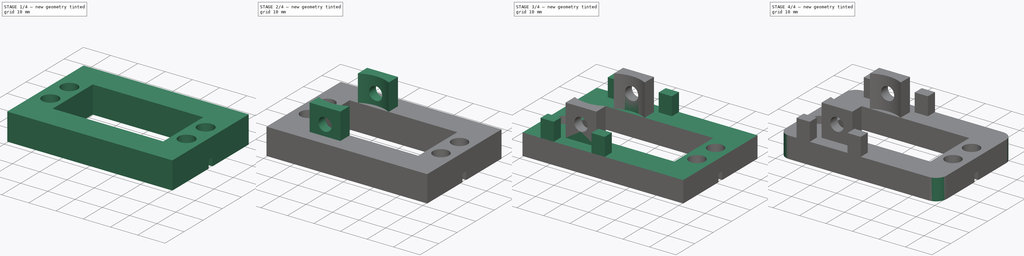
[diagram: build sequence overview — one tinted view per stage of 4, left to right]
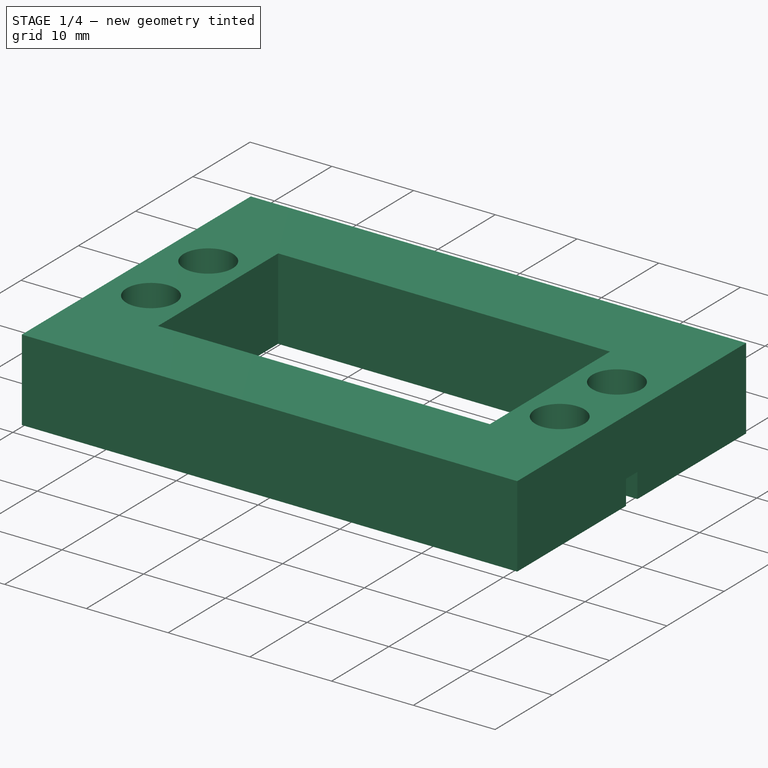
[diagram: stage 1 of 4 — iso view after this stage's code; geometry added in this stage tinted green]
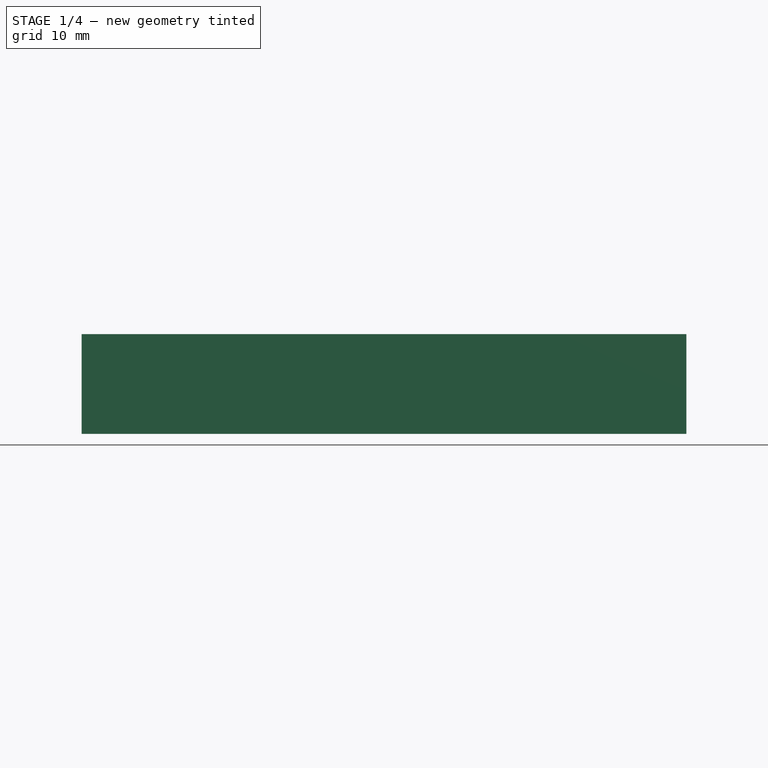
[diagram: stage 1 of 4 — front view after this stage's code; geometry added in this stage tinted green]
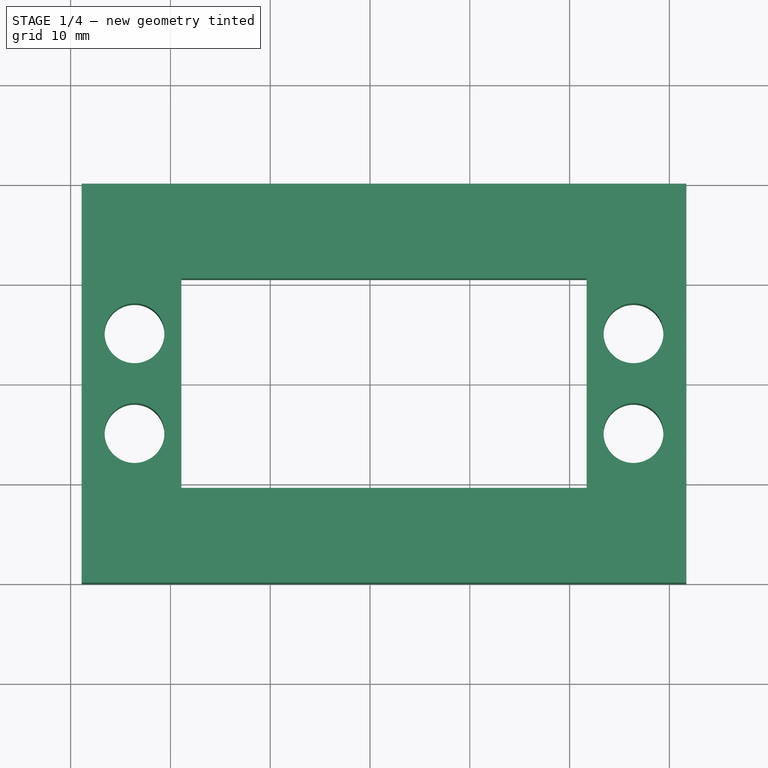
[diagram: stage 1 of 4 — top view after this stage's code; geometry added in this stage tinted green]
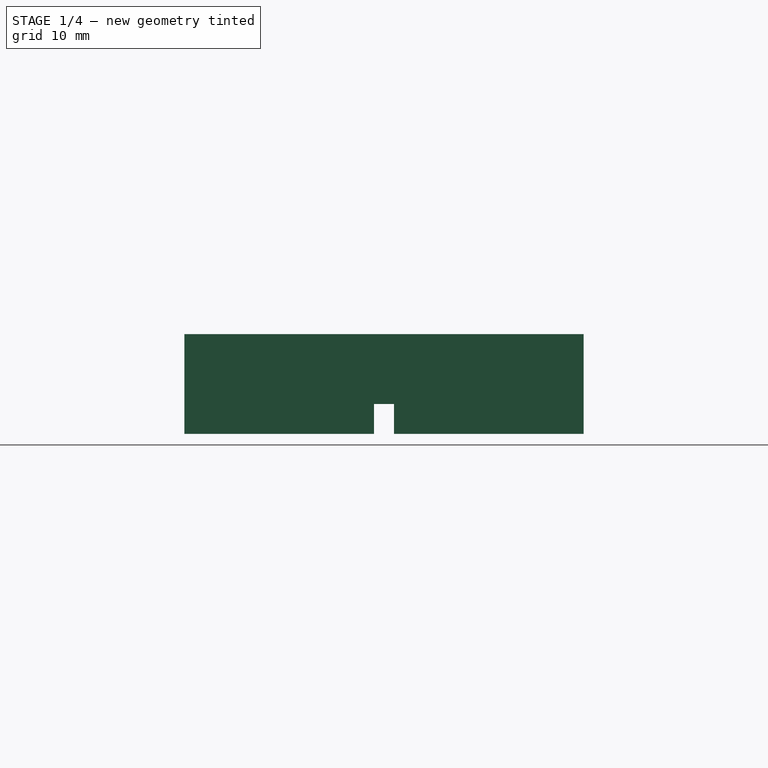
[diagram: stage 1 of 4 — right view after this stage's code; geometry added in this stage tinted green]
FCSTD DOCUMENT  (FreeCAD 0.20R29603 (Git))
Label: Servo_Halter_demo
License: All rights reserved
LicenseURL: http://en.wikipedia.org/wiki/All_rights_reserved
objects: Sketcher::SketchObject×5, PartDesign::Pocket×5, PartDesign::Plane×4, PartDesign::Pad×3, PartDesign::Fillet×1, PartDesign::Body×1
note: 28 computed .brp shape members not serialized (recipe doc carries the construction recipe); baked Part::Feature solids carry a one-line shape summary decoded from their .brp

FEATURE [Sketcher::SketchObject] Sketch
  FullyConstrained = true
  MapMode = 5
  Support = -> [XY_Plane]
  sketch-geometry (16):
    g0: LineSegment StartX=-8.9 StartY=10.5 StartZ=0 EndX=31.7 EndY=10.5 EndZ=0
    g1: LineSegment StartX=31.7 StartY=10.5 StartZ=0 EndX=31.7 EndY=-10.5 EndZ=0
    g2: LineSegment StartX=31.7 StartY=-10.5 StartZ=0 EndX=-8.9 EndY=-10.5 EndZ=0
    g3: LineSegment StartX=-8.9 StartY=-10.5 StartZ=0 EndX=-8.9 EndY=10.5 EndZ=0
    g4: LineSegment StartX=-18.9 StartY=20 StartZ=0 EndX=41.7 EndY=20 EndZ=0
    g5: LineSegment StartX=41.7 StartY=20 StartZ=0 EndX=41.7 EndY=-20 EndZ=0
    g6: LineSegment StartX=41.7 StartY=-20 StartZ=0 EndX=-18.9 EndY=-20 EndZ=0
    g7: LineSegment StartX=-18.9 StartY=-20 StartZ=0 EndX=-18.9 EndY=20 EndZ=0
    g8: Circle CenterX=-13.6 CenterY=5 CenterZ=0 NormalX=0 NormalY=0 NormalZ=1 AngleXU=0 Radius=3
    g9: Circle CenterX=-13.6 CenterY=-5 CenterZ=0 NormalX=0 NormalY=0 NormalZ=1 AngleXU=0 Radius=3
    g10: Circle CenterX=36.4 CenterY=5 CenterZ=0 NormalX=0 NormalY=0 NormalZ=1 AngleXU=0 Radius=3
    g11: Circle CenterX=36.4 CenterY=-5 CenterZ=0 NormalX=0 NormalY=0 NormalZ=1 AngleXU=0 Radius=3
    g12: LineSegment StartX=-13.6 StartY=5 StartZ=0 EndX=-13.6 EndY=-5 EndZ=0
    g13: LineSegment StartX=36.4 StartY=5 StartZ=0 EndX=36.4 EndY=-5 EndZ=0
    g14: LineSegment StartX=11.4 StartY=10.5 StartZ=0 EndX=11.4 EndY=-10.5 EndZ=0
    g15: LineSegment StartX=-16.6 StartY=20 StartZ=0 EndX=-16.6 EndY=-20 EndZ=0
  constraints (43):
    c: Coincident(g0,g1)
    c: Coincident(g1,g2)
    c: Coincident(g2,g3)
    c: Coincident(g3,g0)
    c: Horizontal(g0)
    c: Horizontal(g2)
    c: Vertical(g1)
    c: Coincident(g4,g5)
    c: Coincident(g5,g6)
    c: Coincident(g6,g7)
    c: Coincident(g7,g4)
    c: Horizontal(g4)
    c: Horizontal(g6)
    c: Vertical(g5)
    c: DistanceX(g0,g0) = 40.6
    c: DistanceX(g6,g2) = 10
    c: DistanceX(g1,g5) = 10
    c: DistanceY(g5,g5) = 40
    c: DistanceY(g1,g1) = 21
    c: Symmetric(g0,g2,g-1)
    c: Symmetric(g4,g6,g-1)
    c: Coincident(g12,g8)
    c: Coincident(g12,g9)
    c: Coincident(g13,g10)
    c: Coincident(g13,g11)
    c: Vertical(g13)
    c: DistanceX(g9,g11) = 50
    c: Equal(g9,g8)
    c: Equal(g8,g10)
    c: Equal(g10,g11)
    c: Diameter(g8) = 6
    c: PointOnObject(g14,g0)
    c: PointOnObject(g14,g2)
    c: Symmetric(g0,g0,g14)
    c: Symmetric(g8,g10,g14)
    c: DistanceY(g13,g13) = 10
    c: Equal(g12,g13)
    c: Symmetric(g8,g9,g-1)
    c: PointOnObject(g15,g4)
    c: PointOnObject(g15,g6)
    c: Vertical(g15)
    c: Tangent(g15,g9)
    c: DistanceX(g15,g-1) = 16.6
FEATURE [PartDesign::Pad] Pad
  Direction = (0,0,1)
  Length = 10
  Length2 = 10
  Profile = -> Sketch
  ReferenceAxis = -> Sketch [N_Axis]
  Refine = true
  Type = 0
FEATURE [PartDesign::Plane] DatumPlane
  Length = 78.2499
  MapMode = 2
  ResizeMode = 0
  Support = -> [Pad]
  Width = 61.5499
FEATURE [Sketcher::SketchObject] Sketch001
  ExternalGeometry = -> [Pad]
  FullyConstrained = true
  MapMode = 5
  Support = -> [DatumPlane]
  sketch-geometry (4):
    g0: LineSegment StartX=-18.9 StartY=1 StartZ=0 EndX=41.7 EndY=1 EndZ=0
    g1: LineSegment StartX=41.7 StartY=1 StartZ=0 EndX=41.7 EndY=-1 EndZ=0
    g2: LineSegment StartX=41.7 StartY=-1 StartZ=0 EndX=-18.9 EndY=-1 EndZ=0
    g3: LineSegment StartX=-18.9 StartY=-1 StartZ=0 EndX=-18.9 EndY=1 EndZ=0
  constraints (11):
    c: Coincident(g0,g1)
    c: Coincident(g1,g2)
    c: Coincident(g2,g3)
    c: Coincident(g3,g0)
    c: Horizontal(g0)
    c: Horizontal(g2)
    c: Vertical(g3)
    c: PointOnObject(g0,g-3)
    c: PointOnObject(g1,g-4)
    c: Symmetric(g0,g1,g-1)
    c: DistanceY(g1,g1) = 2
FEATURE [PartDesign::Pocket] Pocket
  BaseFeature = -> Pad
  Direction = (0,0,-1)
  Length = 3
  Length2 = 5
  Profile = -> Sketch001
  ReferenceAxis = -> Sketch001 [N_Axis]
  Refine = true
  Reversed = true
  Type = 0
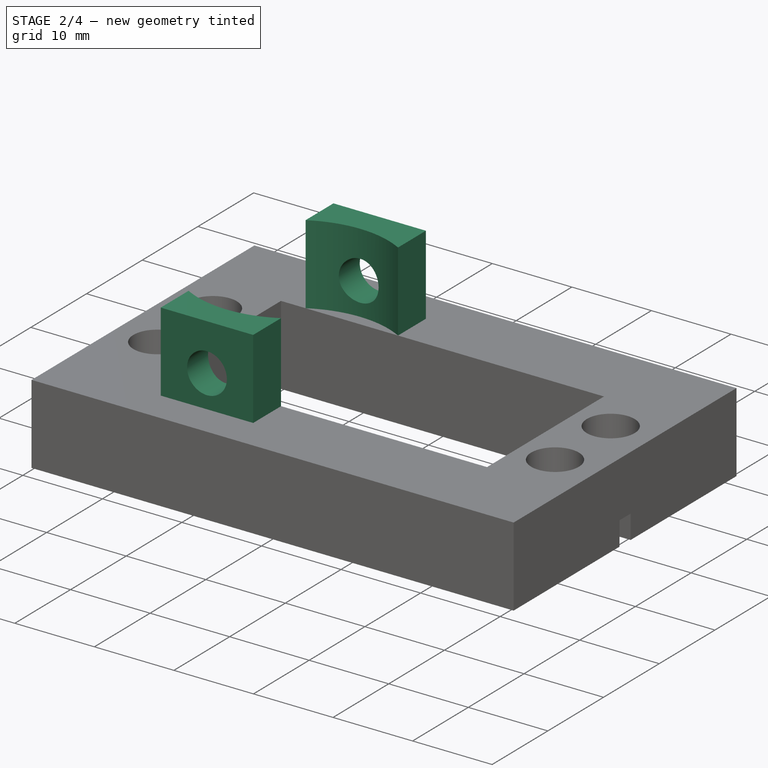
[diagram: stage 2 of 4 — iso view after this stage's code; geometry added in this stage tinted green]
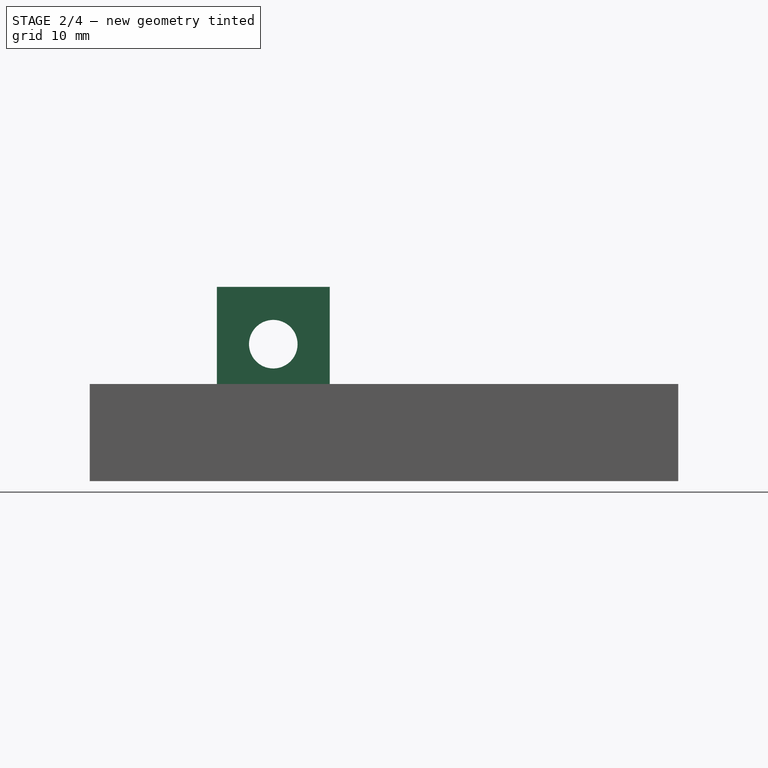
[diagram: stage 2 of 4 — front view after this stage's code; geometry added in this stage tinted green]
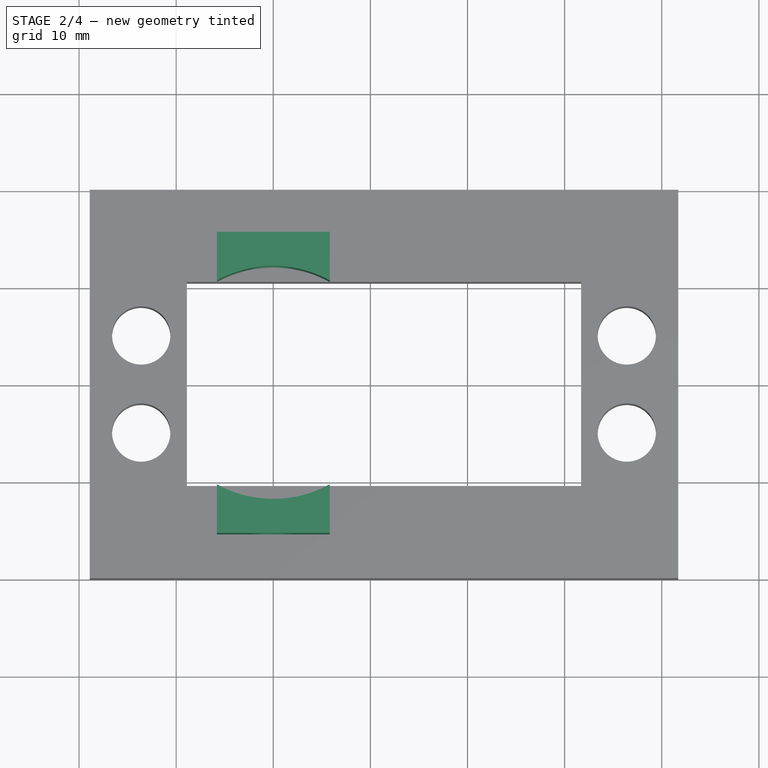
[diagram: stage 2 of 4 — top view after this stage's code; geometry added in this stage tinted green]
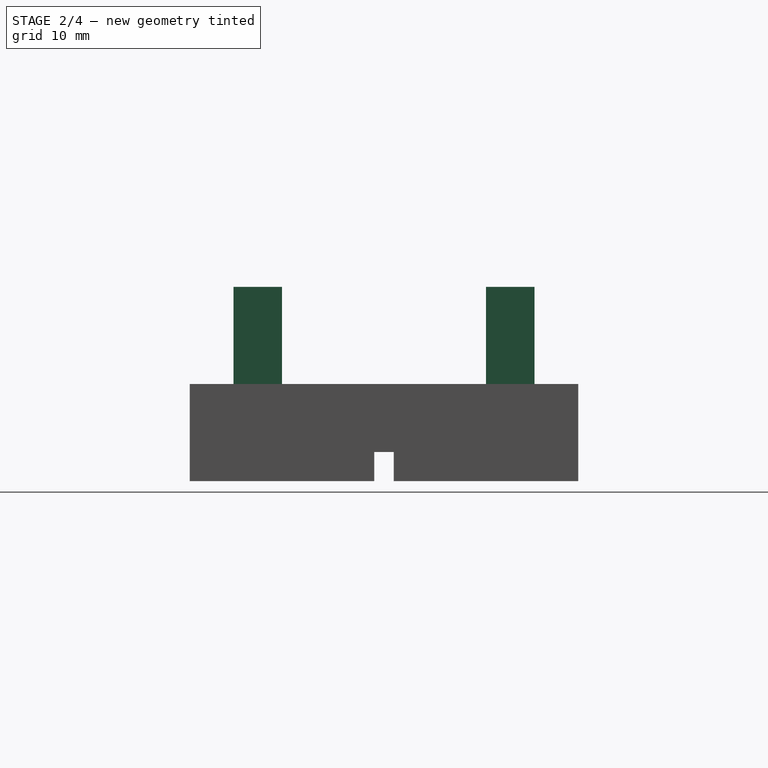
[diagram: stage 2 of 4 — right view after this stage's code; geometry added in this stage tinted green]
FEATURE [PartDesign::Plane] DatumPlane001
  Length = 78.2499
  MapMode = 5
  Placement = pos=(0,0,10) rot=(0,0,1;0rad)
  ResizeMode = 0
  Support = -> [Pocket]
  Width = 61.5499
FEATURE [Sketcher::SketchObject] Sketch002
  ExternalGeometry = -> [Pocket]
  FullyConstrained = true
  MapMode = 5
  Placement = pos=(0,0,10) rot=(0,0,1;0rad)
  Support = -> [Pocket]
  sketch-geometry (8):
    g0: LineSegment StartX=-5.80948 StartY=15.5 StartZ=0 EndX=5.80948 EndY=15.5 EndZ=0
    g1: LineSegment StartX=5.80948 StartY=15.5 StartZ=0 EndX=5.80948 EndY=10.5 EndZ=0
    g2: LineSegment StartX=-5.80948 StartY=10.5 StartZ=0 EndX=-5.80948 EndY=15.5 EndZ=0
    g3: LineSegment StartX=5.80948 StartY=-10.5 StartZ=0 EndX=5.80948 EndY=-15.5 EndZ=0
    g4: LineSegment StartX=5.80948 StartY=-15.5 StartZ=0 EndX=-5.80948 EndY=-15.5 EndZ=0
    g5: LineSegment StartX=-5.80948 StartY=-15.5 StartZ=0 EndX=-5.80948 EndY=-10.5 EndZ=0
    g6: ArcOfCircle CenterX=0 CenterY=0 CenterZ=0 NormalX=0 NormalY=0 NormalZ=1 AngleXU=0 Radius=12 StartAngle=1.06544 EndAngle=2.07616
    g7: ArcOfCircle CenterX=0 CenterY=0 CenterZ=0 NormalX=0 NormalY=0 NormalZ=1 AngleXU=0 Radius=12 StartAngle=4.20703 EndAngle=5.21775
  constraints (24):
    c: Coincident(g0,g1)
    c: Coincident(g2,g0)
    c: Horizontal(g0)
    c: Vertical(g1)
    c: Vertical(g2)
    c: Coincident(g3,g4)
    c: Coincident(g4,g5)
    c: Horizontal(g4)
    c: Vertical(g3)
    c: Vertical(g5)
    c: Coincident(g6,g-1)
    c: Coincident(g6,g2)
    c: Coincident(g6,g1)
    c: Coincident(g7,g6)
    c: Coincident(g7,g5)
    c: Coincident(g7,g3)
    c: Diameter(g6) = 24
    c: Diameter(g7) = 24
    c: PointOnObject(g1,g-3)
    c: PointOnObject(g2,g-3)
    c: PointOnObject(g3,g-4)
    c: PointOnObject(g5,g-4)
    c: Equal(g1,g3)
    c: DistanceY(g1,g1) = 5
FEATURE [PartDesign::Pad] Pad001
  BaseFeature = -> Pocket
  Direction = (0,0,1)
  Length = 10
  Length2 = 10
  Profile = -> Sketch002
  ReferenceAxis = -> Sketch002 [N_Axis]
  Refine = true
  Type = 0
FEATURE [PartDesign::Plane] DatumPlane002
  Length = 78.2499
  MapMode = 5
  Placement = pos=(0,-15.5,0) rot=(1,0,0;1.5708rad)
  ResizeMode = 0
  Support = -> [Pad001]
  Width = 61.5499
FEATURE [Sketcher::SketchObject] Sketch003
  ExternalGeometry = -> [Pad001]
  FullyConstrained = true
  MapMode = 5
  Placement = pos=(0,-15.5,0) rot=(1,0,0;1.5708rad)
  Support = -> [Pad001]
  sketch-geometry (1):
    g0: Circle CenterX=0 CenterY=14.1 CenterZ=0 NormalX=0 NormalY=0 NormalZ=1 AngleXU=0 Radius=2.5
  constraints (3):
    c: PointOnObject(g0,g-2)
    c: Diameter(g0) = 5
    c: DistanceY(g-3,g0) = 4.1
FEATURE [PartDesign::Pocket] Pocket001
  BaseFeature = -> Pad001
  Direction = (0,1,-2e-16)
  Length = 5
  Length2 = 5
  Profile = -> Sketch003
  ReferenceAxis = -> Sketch003 [N_Axis]
  Refine = true
  Type = 1
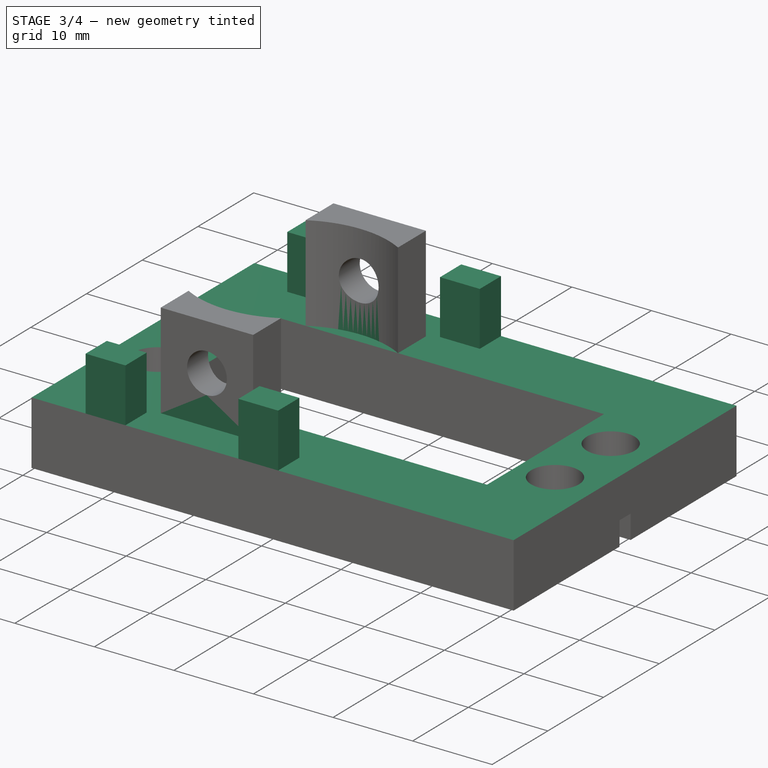
[diagram: stage 3 of 4 — iso view after this stage's code; geometry added in this stage tinted green]
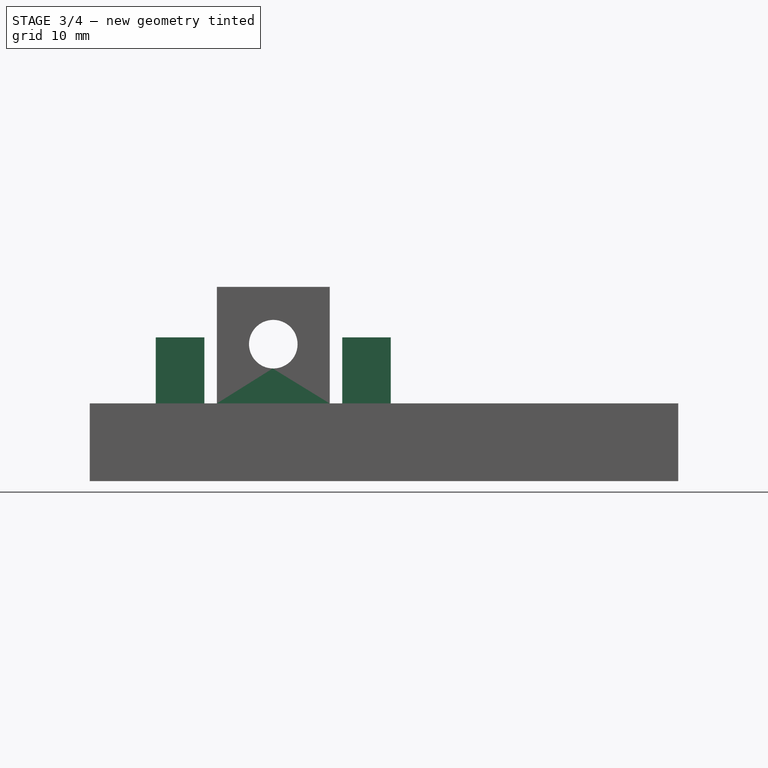
[diagram: stage 3 of 4 — front view after this stage's code; geometry added in this stage tinted green]
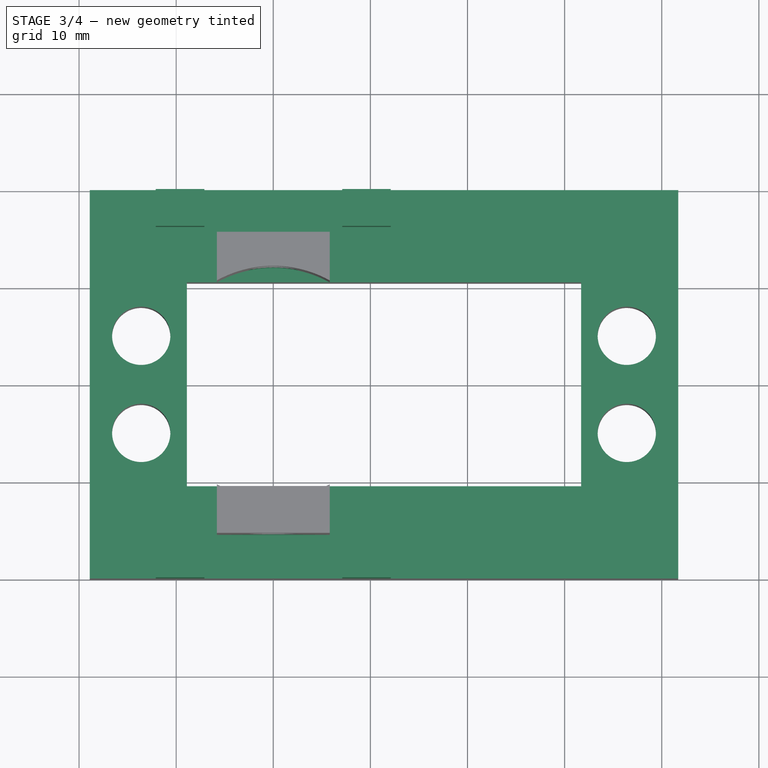
[diagram: stage 3 of 4 — top view after this stage's code; geometry added in this stage tinted green]
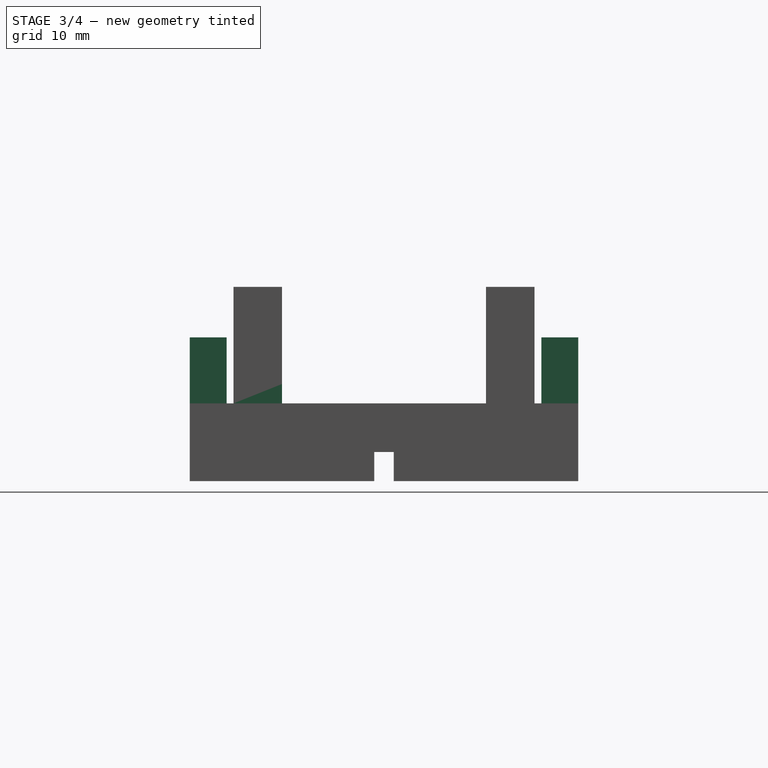
[diagram: stage 3 of 4 — right view after this stage's code; geometry added in this stage tinted green]
FEATURE [PartDesign::Plane] DatumPlane003
  Length = 78.2499
  MapMode = 5
  Placement = pos=(0,0,10) rot=(0,0,1;0rad)
  ResizeMode = 0
  Support = -> [Pocket001]
  Width = 61.5499
FEATURE [Sketcher::SketchObject] Sketch004
  ExternalGeometry = -> [Pocket001]
  FullyConstrained = true
  MapMode = 5
  Placement = pos=(0,0,10) rot=(0,0,1;0rad)
  Support = -> [Pocket001]
  sketch-geometry (16):
    g0: LineSegment StartX=7.1 StartY=20 StartZ=0 EndX=12.1 EndY=20 EndZ=0
    g1: LineSegment StartX=12.1 StartY=20 StartZ=0 EndX=12.1 EndY=16.2 EndZ=0
    g2: LineSegment StartX=12.1 StartY=16.2 StartZ=0 EndX=7.1 EndY=16.2 EndZ=0
    g3: LineSegment StartX=7.1 StartY=16.2 StartZ=0 EndX=7.1 EndY=20 EndZ=0
    g4: LineSegment StartX=-12.1 StartY=20 StartZ=0 EndX=-7.1 EndY=20 EndZ=0
    g5: LineSegment StartX=-7.1 StartY=20 StartZ=0 EndX=-7.1 EndY=16.2 EndZ=0
    g6: LineSegment StartX=-7.1 StartY=16.2 StartZ=0 EndX=-12.1 EndY=16.2 EndZ=0
    g7: LineSegment StartX=-12.1 StartY=16.2 StartZ=0 EndX=-12.1 EndY=20 EndZ=0
    g8: LineSegment StartX=-12.1 StartY=-16.2 StartZ=0 EndX=-7.1 EndY=-16.2 EndZ=0
    g9: LineSegment StartX=-7.1 StartY=-16.2 StartZ=0 EndX=-7.1 EndY=-20 EndZ=0
    g10: LineSegment StartX=-7.1 StartY=-20 StartZ=0 EndX=-12.1 EndY=-20 EndZ=0
    g11: LineSegment StartX=-12.1 StartY=-20 StartZ=0 EndX=-12.1 EndY=-16.2 EndZ=0
    g12: LineSegment StartX=7.1 StartY=-16.2 StartZ=0 EndX=12.1 EndY=-16.2 EndZ=0
    g13: LineSegment StartX=12.1 StartY=-16.2 StartZ=0 EndX=12.1 EndY=-20 EndZ=0
    g14: LineSegment StartX=12.1 StartY=-20 StartZ=0 EndX=7.1 EndY=-20 EndZ=0
    g15: LineSegment StartX=7.1 StartY=-20 StartZ=0 EndX=7.1 EndY=-16.2 EndZ=0
  constraints (48):
    c: Coincident(g0,g1)
    c: Coincident(g1,g2)
    c: Coincident(g2,g3)
    c: Coincident(g3,g0)
    c: Horizontal(g0)
    c: Horizontal(g2)
    c: Vertical(g1)
    c: Vertical(g3)
    c: Coincident(g4,g5)
    c: Coincident(g5,g6)
    c: Coincident(g6,g7)
    c: Coincident(g7,g4)
    c: Horizontal(g4)
    c: Horizontal(g6)
    c: Vertical(g5)
    c: Vertical(g7)
    c: Coincident(g8,g9)
    c: Coincident(g9,g10)
    c: Coincident(g10,g11)
    c: Coincident(g11,g8)
    c: Horizontal(g8)
    c: Horizontal(g10)
    c: Vertical(g9)
    c: Vertical(g11)
    c: PointOnObject(g9,g-5)
    c: Coincident(g12,g13)
    c: Coincident(g13,g14)
    c: Coincident(g14,g15)
    c: Coincident(g15,g12)
    c: Horizontal(g12)
    c: Horizontal(g14)
    c: Vertical(g13)
    c: Vertical(g15)
    c: PointOnObject(g13,g-5)
    c: PointOnObject(g4,g-3)
    c: PointOnObject(g0,g-3)
    c: Equal(g6,g2)
    c: Equal(g2,g12)
    c: Equal(g12,g8)
    c: Equal(g7,g3)
    c: Equal(g3,g11)
    c: Equal(g11,g15)
    c: DistanceX(g4,g-1) = 7.1
    c: DistanceX(g0,g0) = 5
    c: DistanceX(g-1,g0) = 7.1
    c: DistanceY(g13,g13) = 3.8
    c: DistanceX(g8,g-1) = 7.1
    c: DistanceX(g-1,g14) = 7.1
FEATURE [PartDesign::Pad] Pad002
  BaseFeature = -> Pocket001
  Direction = (0,0,1)
  Length = 4.8
  Length2 = 10
  Profile = -> Sketch004
  ReferenceAxis = -> Sketch004 [N_Axis]
  Refine = true
  Type = 0
FEATURE [PartDesign::Pocket] Pocket002
  BaseFeature = -> Pad002
  Direction = (0,0,-1)
  Length = 2
  Length2 = 5
  Profile = -> Pad002 [Face4]
  Refine = true
  Type = 0
FEATURE [PartDesign::Pocket] Pocket003
  BaseFeature = -> Pocket002
  Direction = (0,0,-1)
  Length = 2
  Length2 = 5
  Profile = -> Pocket002 [Face25]
  Refine = true
  Type = 0
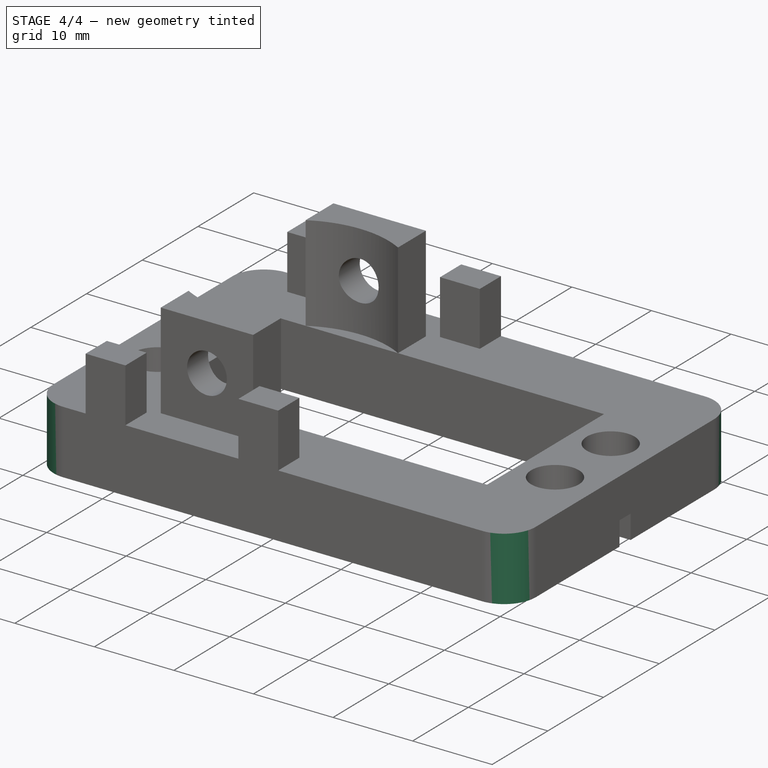
[diagram: stage 4 of 4 — iso view after this stage's code; geometry added in this stage tinted green]
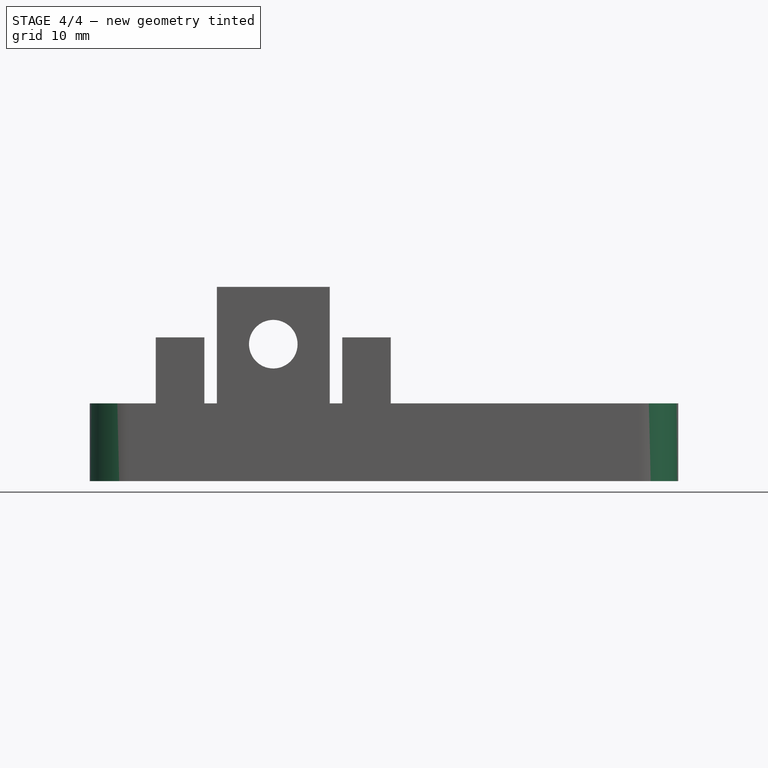
[diagram: stage 4 of 4 — front view after this stage's code; geometry added in this stage tinted green]
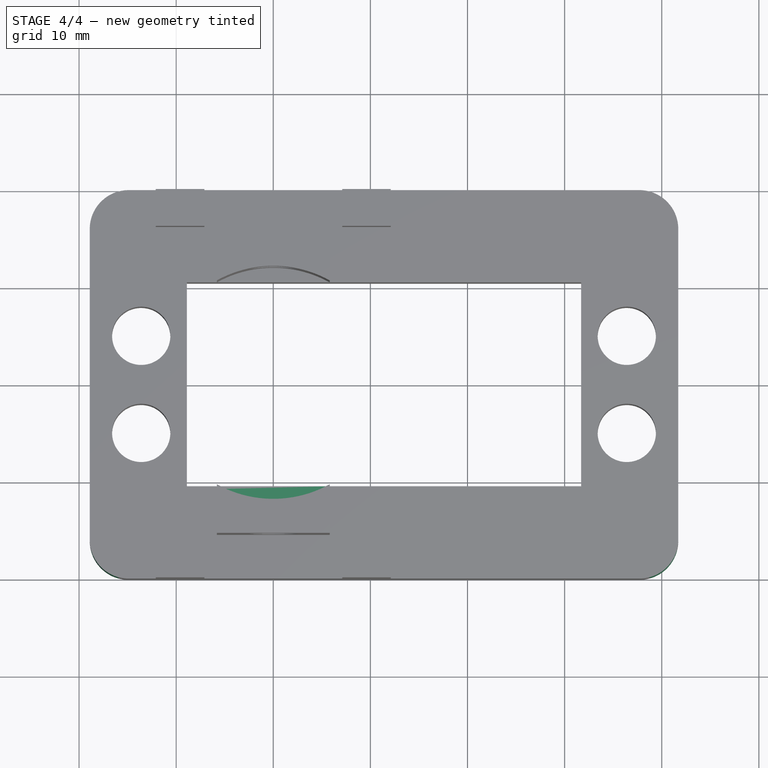
[diagram: stage 4 of 4 — top view after this stage's code; geometry added in this stage tinted green]
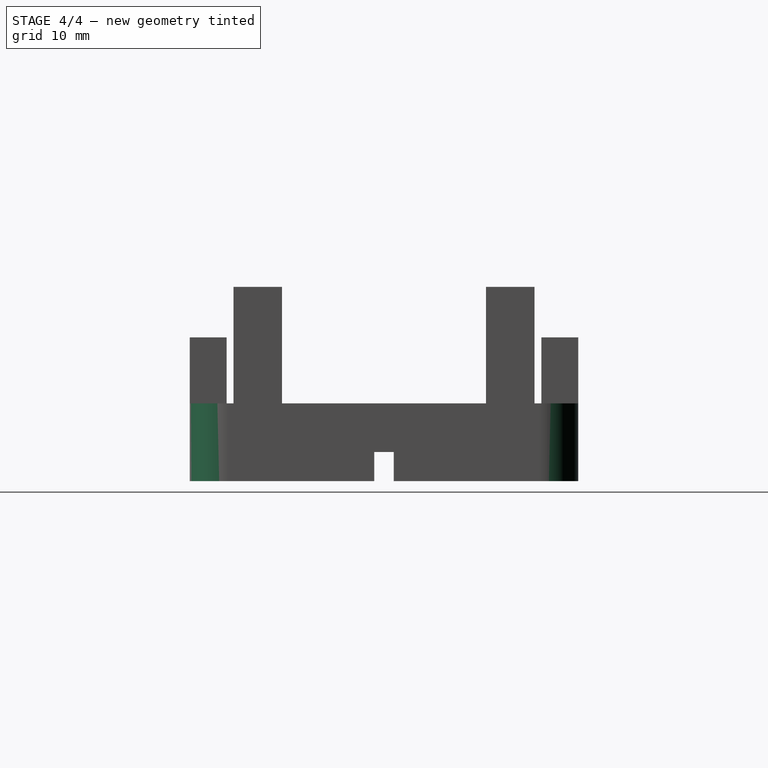
[diagram: stage 4 of 4 — right view after this stage's code; geometry added in this stage tinted green]
FEATURE [PartDesign::Pocket] Pocket004
  BaseFeature = -> Pocket003
  Direction = (0,0,-1)
  Length = 2
  Length2 = 5
  Profile = -> Pocket003 [Face45]
  Refine = true
  Type = 0
FEATURE [PartDesign::Fillet] Fillet
  Base = -> Pocket004 [Edge32,Edge80,Edge6,Edge8]
  BaseFeature = -> Pocket004
  Radius = 4
  Refine = true
  SupportTransform = false
  UseAllEdges = false
FEATURE [PartDesign::Body] Body
  Group = -> [Sketch,Pad,DatumPlane,Sketch001,Pocket,DatumPlane001,Sketch002,Pad001,DatumPlane002,Sketch003,Pocket001,DatumPlane003,Sketch004,Pad002,Pocket002,Pocket003,Pocket004,Fillet]
  Origin = -> Origin
  Tip = -> Fillet
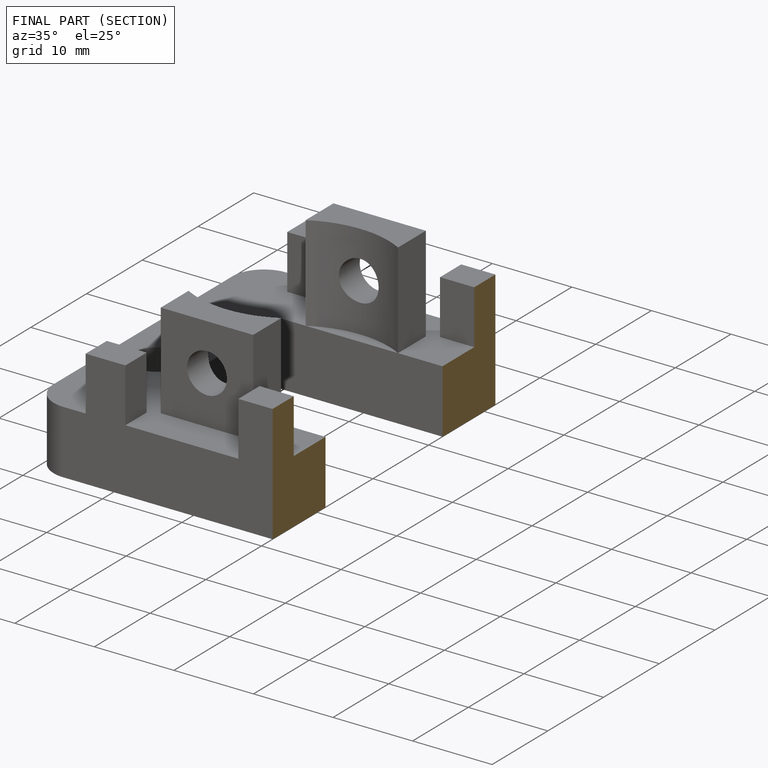
[diagram: finished part — half-section view (interior)]
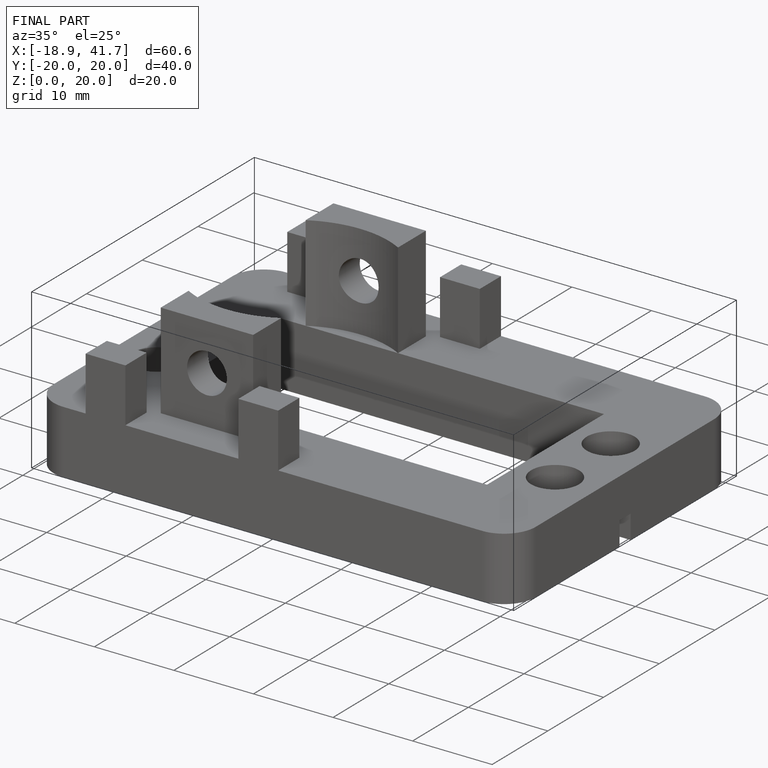
[diagram: finished part — iso view with bounding-box wireframe]
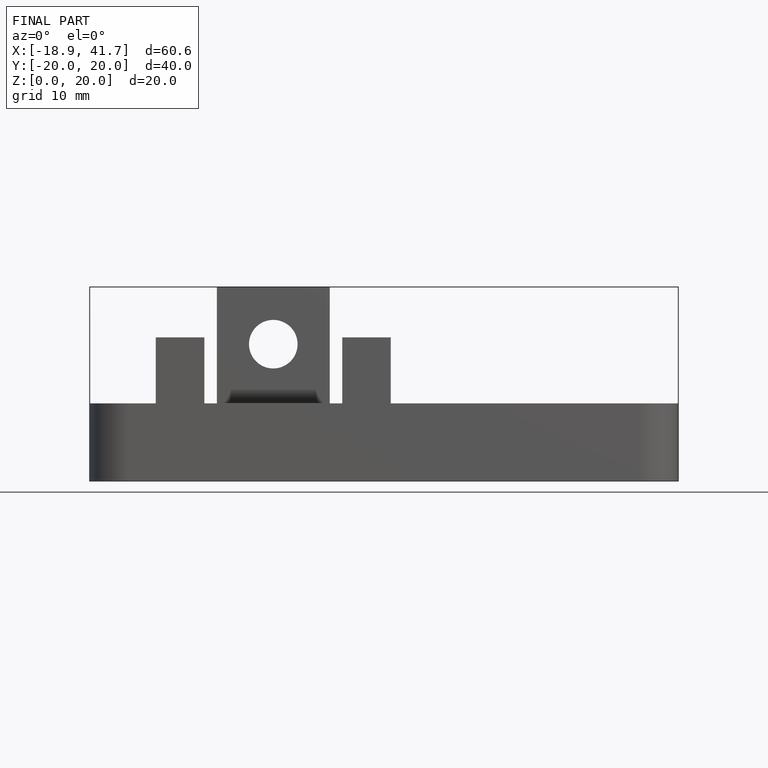
[diagram: finished part — front view with bounding-box wireframe]
